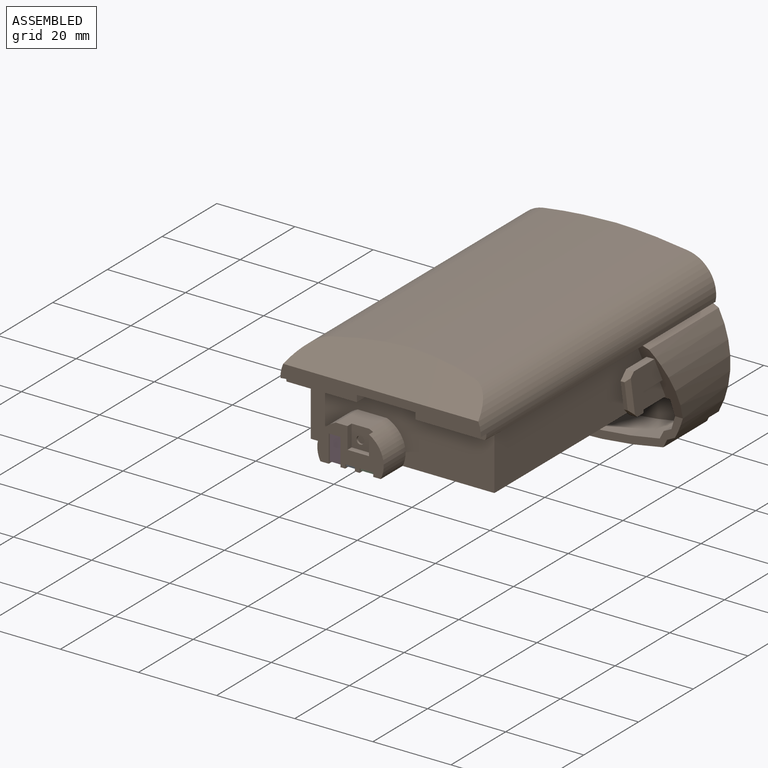
[diagram: assembled view]
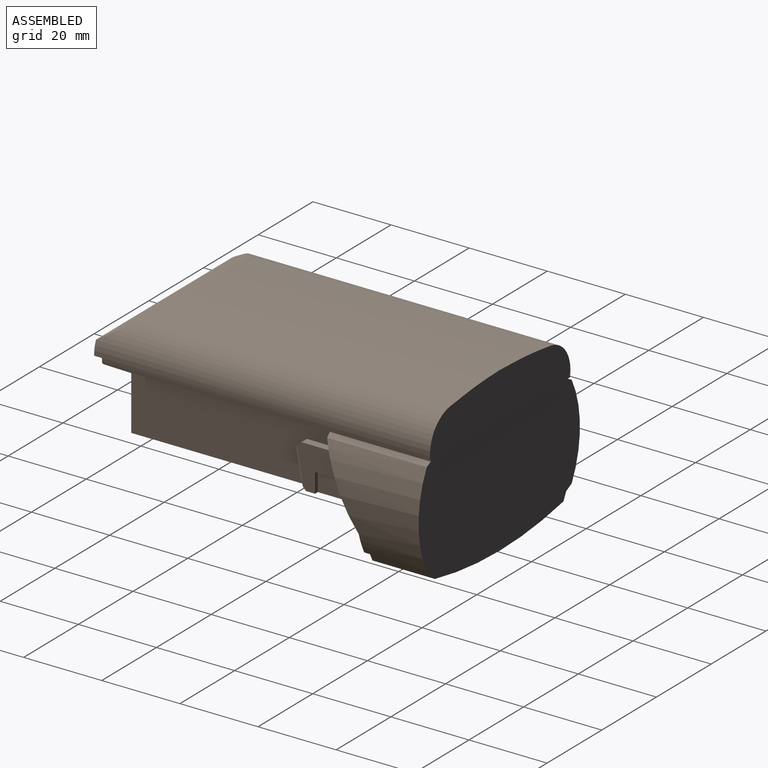
[diagram: assembled view, second angle]
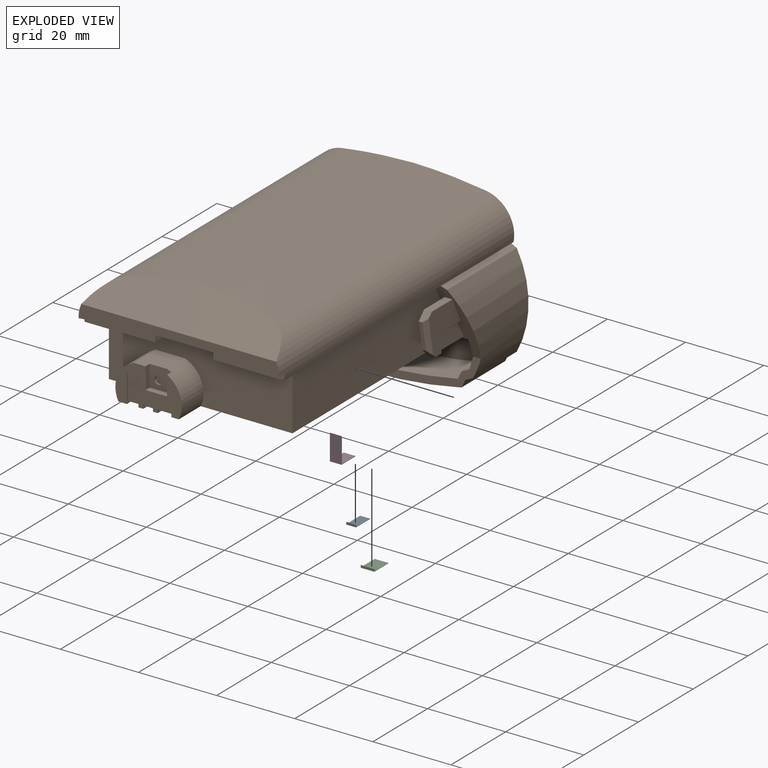
[diagram: exploded view]
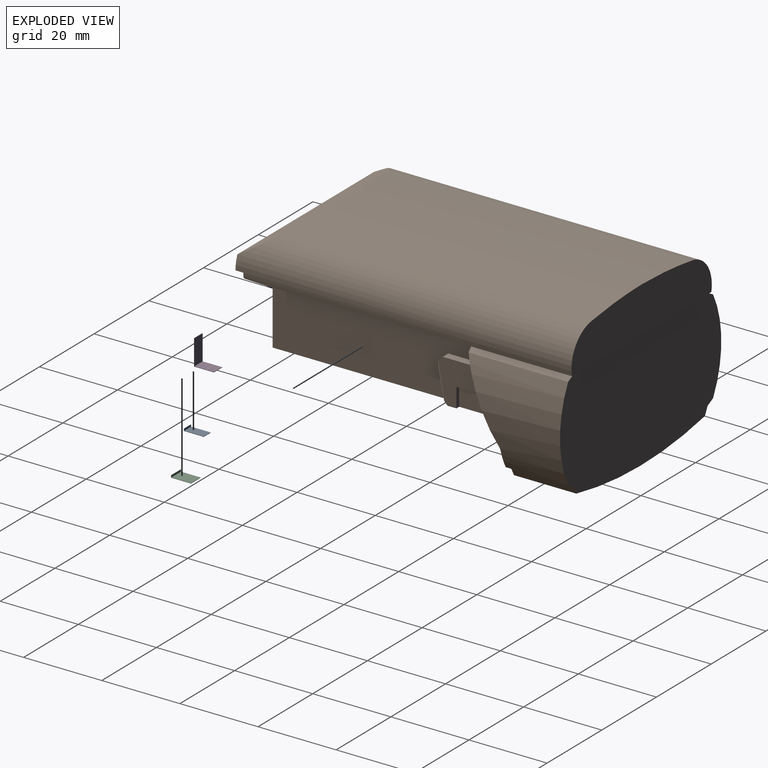
[diagram: exploded view, second angle]
ASSEMBLY  parts=4 mates=3
PART A: 10 faces, bbox 2.5x5.1x0.6 mm
  f0: bspline ~5.1x0.1mm, area 0.5mm2, adj f1,f5,f7,f9
  f1: bspline ~2.5x0.1mm, area 0.3mm2, adj f0,f2,f7,f9
  f2: bspline ~5.1x0.1mm, area 0.5mm2, adj f1,f3,f7,f9
  f3: bspline ~0.6x0.1mm, area 0.1mm2, adj f2,f4,f6,f8
  f4: bspline ~2.5x0.1mm, area 0.3mm2, adj f3,f5,f6,f8
  f5: bspline ~0.6x0.1mm, area 0.1mm2, adj f0,f4,f6,f8
  f6: plane 2.5x0.6mm, normal (0,-1,0), area 1.5mm2, adj f3,f4,f5,f7
  f7: plane 5.1x2.5mm, normal (0,0,-1), area 12.8mm2, adj f0,f1,f2,f6
  f8: plane 2.5x0.5mm, normal (0,1,0), area 1.3mm2, adj f3,f4,f5,f9
  f9: plane 5x2.5mm, normal (0,0,1), area 12.5mm2, adj f0,f1,f2,f8
PART B: 100 faces, bbox 60x87x43 mm
  f0: plane 20.25x10.25mm, normal (0,-0.89,-0.45), area 76.9mm2, adj f5,f6,f8,f10,f11,f12,f19,f20
  f1: plane 26x2mm, normal (-0.45,0,0.89), area 57.6mm2, adj f2,f3,f4,f90
  f2: plane 20.25x10.25mm, normal (0,-0.89,-0.45), area 76.9mm2, adj f1,f3,f5,f7,f9,f10,f13,f14
  f3: cylinder r=25.5mm len=25.5mm, axis (0,-1,0), area 492.8mm2, adj f1,f2,f4,f5,f25
  f4: plane 59x30.5mm, normal (0,1,0), area 1645.7mm2, adj f1,f3,f6,f8,f25,f26,f27,f28
  f5: plane 57.04x10.5mm, normal (0,-1,0), area 123.5mm2, adj f0,f2,f3,f8,f25,f26,f27,f28
  f6: plane 26x2mm, normal (0.45,0,0.89), area 57.6mm2, adj f0,f4,f8,f90
  f7: plane 10x0.02mm, normal (0,0,-1), area 0.2mm2, adj f2,f9,f36,f37
  f8: cylinder r=25.5mm len=25.5mm, axis (0,-1,0), area 492.8mm2, adj f0,f4,f5,f6,f29
  f9: plane 12.5x5mm, normal (1,0,0.1), area 56.5mm2, adj f2,f7,f10,f37
  f10: plane 79.75x54mm, normal (0,0,-1), area 3534mm2, adj f0,f2,f9,f12,f37,f63,f64,f65
  f11: plane 10x0.02mm, normal (0,0,-1), area 0.2mm2, adj f0,f12,f30,f37
  f12: plane 12.5x5mm, normal (-1,0,0.1), area 56.5mm2, adj f0,f10,f11,f37
  f13: plane 15x11mm, normal (1,0,0), area 124.1mm2, adj f2,f14,f18,f38,f39,f40
  f14: plane 7.5x2mm, normal (0,0,1), area 15mm2, adj f2,f13,f15,f38
  f15: plane 11.63x11mm, normal (-1,0,0), area 74.7mm2, adj f2,f14,f16,f18,f38,f40,f41,f42
  f16: plane 7x1mm, normal (0,0,-1), area 7mm2, adj f2,f15,f17,f42
  f17: plane 9.5x5mm, normal (-1,0,0), area 41.2mm2, adj f2,f16,f18,f42
  f18: plane 11.8x2mm, normal (0,0,-1), area 14.1mm2, adj f2,f13,f15,f17,f40,f42
  f19: plane 11.8x2mm, normal (0,0,-1), area 14.1mm2, adj f0,f20,f21,f24,f43,f44
  f20: plane 15x11mm, normal (-1,0,0), area 124.2mm2, adj f0,f19,f22,f43,f45,f46
  f21: plane 9.5x5mm, normal (1,0,0), area 41.3mm2, adj f0,f19,f23,f44
  f22: plane 7.5x2mm, normal (0,0,1), area 15mm2, adj f0,f20,f24,f45
  f23: plane 7x1mm, normal (0,0,-1), area 7mm2, adj f0,f21,f24,f44
  f24: plane 11.63x11mm, normal (1,0,0), area 74.7mm2, adj f0,f19,f22,f23,f43,f44,f45,f47
  f25: plane 16x2mm, normal (-0.45,0,-0.89), area 35.8mm2, adj f3,f4,f5,f26
  f26: plane 16x2mm, normal (-0.89,0,-0.45), area 35.8mm2, adj f4,f5,f25,f27
  f27: cylinder r=111.7mm len=47mm, axis (0,-1,0), area 757.7mm2, adj f4,f5,f26,f28
  f28: plane 16x2mm, normal (0.89,0,-0.45), area 35.8mm2, adj f4,f5,f27,f29
  f29: plane 16x2mm, normal (0.45,0,-0.89), area 35.8mm2, adj f4,f5,f8,f28
  f30: plane 10x3.21mm, normal (-0.96,0,0.27), area 33.4mm2, adj f5,f11,f31,f37
  f31: plane 10x2mm, normal (-0.45,0,0.89), area 22.4mm2, adj f5,f30,f32,f37
  f32: plane 10x2mm, normal (-0.89,0,0.45), area 22.4mm2, adj f5,f31,f33,f37
  f33: cylinder r=112.77mm len=45.21mm, axis (0,-1,0), area 455.2mm2, adj f5,f32,f34,f37
  f34: plane 10x2mm, normal (0.89,0,0.45), area 22.4mm2, adj f5,f33,f35,f37
  f35: plane 10x2mm, normal (0.45,0,0.89), area 22.4mm2, adj f5,f34,f36,f37
  f36: plane 10x3.21mm, normal (0.96,0,0.27), area 33.4mm2, adj f5,f7,f35,f37
  f37: plane 54x13.5mm, normal (0,-1,0), area 645.6mm2, adj f7,f9,f10,f11,f12,f30,f31,f32
  f38: plane 2x2mm, normal (0,-0.71,0.71), area 5mm2, adj f13,f14,f15,f39,f41
  f39: plane 7x1.2mm, normal (0,-0.99,-0.17), area 7.1mm2, adj f13,f38,f40,f41
  f40: plane 2x2mm, normal (0,-0.71,-0.71), area 4.8mm2, adj f13,f15,f18,f39,f41
  f41: plane 9.09x2.42mm, normal (-0.71,-0.7,-0.12), area 11.5mm2, adj f15,f38,f39,f40
  f42: plane 5x1mm, normal (0,1,0), area 5mm2, adj f15,f16,f17,f18
  f43: plane 2x2mm, normal (0,-0.71,-0.71), area 4.8mm2, adj f19,f20,f24,f46,f47
  f44: plane 5x1mm, normal (0,1,0), area 5mm2, adj f19,f21,f23,f24
  f45: plane 2x2mm, normal (0,-0.71,0.71), area 5mm2, adj f20,f22,f24,f46,f47
  f46: plane 7x1.2mm, normal (0,-0.99,-0.17), area 7.1mm2, adj f20,f43,f45,f47
  f47: plane 9.09x2.42mm, normal (0.71,-0.7,-0.12), area 11.5mm2, adj f24,f43,f45,f46
  f48: plane 2x2mm, normal (0,-1,0), area 3.1mm2, adj f51
  f49: plane 2.5x0.5mm, normal (0,-1,0), area 1.3mm2, adj f56,f60,f67,f69
  f50: plane 3.5x0.5mm, normal (0,-1,0), area 1.8mm2, adj f55,f61,f70,f72
  f51: cylinder r=1mm len=2mm, axis (0,-1,0), area 3.1mm2, adj f48,f62
  f52: plane 5.5x1.5mm, normal (1,0,0), area 8.2mm2, adj f53,f62,f63,f75
  f53: plane 5.5x1.5mm, normal (0,0,1), area 8.2mm2, adj f52,f54,f62,f63
  f54: plane 5.03x1.5mm, normal (-1,0,0), area 7.5mm2, adj f53,f62,f63,f76
  f55: plane 3.5x0.5mm, normal (0,0,-1), area 1.8mm2, adj f50,f63,f70,f72
  f56: plane 2.5x0.5mm, normal (0,0,-1), area 1.3mm2, adj f49,f63,f67,f69
  f57: plane 3x0.5mm, normal (0,0,-1), area 1.5mm2, adj f58,f63,f64,f66
  f58: plane 6.5x3mm, normal (0,-1,0), area 19.5mm2, adj f57,f59,f64,f66
  f59: plane 5x3mm, normal (0,0,-1), area 15mm2, adj f58,f64,f65,f66
  f60: plane 5x2.5mm, normal (0,0,-1), area 12.5mm2, adj f49,f67,f68,f69
  f61: plane 5x3.5mm, normal (0,0,-1), area 17.5mm2, adj f50,f70,f71,f72
  f62: plane 5.5x5.5mm, normal (0,-1,0), area 26.9mm2, adj f51,f52,f53,f54,f75,f76
  f63: plane 17x10mm, normal (0,-1,0), area 93.3mm2, adj f10,f52,f53,f54,f55,f56,f57,f64
  f64: plane 7x5.5mm, normal (1,0,0), area 6mm2, adj f10,f57,f58,f59,f63,f65
  f65: plane 3x0.5mm, normal (0,-1,0), area 1.5mm2, adj f10,f59,f64,f66
  f66: plane 7x5.5mm, normal (-1,0,0), area 6mm2, adj f10,f57,f58,f59,f63,f65
  f67: plane 5.5x1mm, normal (1,0,0), area 3mm2, adj f10,f49,f56,f60,f63,f68
  f68: plane 2.5x0.5mm, normal (0,-1,0), area 1.2mm2, adj f10,f60,f67,f69
  f69: plane 5.5x1mm, normal (-1,0,0), area 3mm2, adj f10,f49,f56,f60,f63,f68
  f70: plane 5.5x1mm, normal (1,0,0), area 3mm2, adj f10,f50,f55,f61,f63,f71
  f71: plane 3.5x0.5mm, normal (0,-1,0), area 1.7mm2, adj f10,f61,f70,f72
  f72: plane 5.5x1mm, normal (-1,0,0), area 3mm2, adj f10,f50,f55,f61,f63,f71
  f73: cylinder r=7mm len=8mm, axis (0,1,0), area 53mm2, adj f10,f63,f74,f83
  f74: cylinder r=7.64mm len=8mm, axis (0,1,0), area 44mm2, adj f63,f73,f75,f83
  f75: plane 8x7.51mm, normal (0,0,1), area 53.3mm2, adj f52,f62,f63,f74,f76,f83
  f76: cylinder r=7.64mm len=8mm, axis (0,1,0), area 42.3mm2, adj f54,f62,f63,f75,f77,f83
  f77: cylinder r=7mm len=8mm, axis (0,1,0), area 53mm2, adj f10,f63,f76,f83
  f78: plane 15x2mm, normal (0,-1,0), area 30mm2, adj f79,f84,f85,f86
  f79: plane 15x4mm, normal (0,0,1), area 60mm2, adj f78,f80,f84,f86
  f80: plane 15x1mm, normal (0,-1,0), area 15mm2, adj f79,f84,f86,f90
  f81: plane 59.25x15mm, normal (1,0,0), area 832.5mm2, adj f0,f10,f83,f90
  f82: plane 59.25x15mm, normal (-1,0,0), area 832.5mm2, adj f2,f10,f83,f90
  f83: plane 47x15mm, normal (0,-1,0), area 554.6mm2, adj f10,f73,f74,f75,f76,f77,f81,f82
  f84: plane 7x3mm, normal (-1,0,0), area 17mm2, adj f78,f79,f80,f85,f90,f91,f92
  f85: plane 15x7mm, normal (0,0,-1), area 105mm2, adj f78,f84,f86,f92,f93
  f86: plane 7x3mm, normal (1,0,0), area 17mm2, adj f78,f79,f80,f85,f90,f93,f94
  f87: cylinder r=134.11mm len=77.88mm, axis (0,1,0), area 1423.9mm2, adj f88,f89,f95,f96
  f88: plane 51.34x11.51mm, normal (0,1,0), area 519.8mm2, adj f87,f89,f90,f95,f97
  f89: cylinder r=134.11mm len=77.88mm, axis (0,1,0), area 1423.9mm2, adj f87,f88,f96,f97
  f90: plane 84x51mm, normal (0,0,-1), area 473.9mm2, adj f0,f1,f2,f4,f6,f80,f81,f82
  f91: plane 18.17x3mm, normal (0,-1,0), area 42.3mm2, adj f84,f90,f97,f98
  f92: plane 7.5x0.12mm, normal (0,1,0), area 0.3mm2, adj f84,f85,f98
  f93: plane 7.5x0.12mm, normal (0,1,0), area 0.3mm2, adj f85,f86,f98
  f94: plane 18.17x2.88mm, normal (0,-1,0), area 42.3mm2, adj f86,f90,f95,f98
  f95: cylinder r=8.43mm len=86mm, axis (0,1,0), area 1128.4mm2, adj f87,f88,f90,f94,f96,f98,f99
  f96: plane 51x11.61mm, normal (0,-0.52,0.85), area 505.3mm2, adj f87,f89,f95,f97,f99
  f97: cylinder r=8.43mm len=86mm, axis (0,1,0), area 1128.4mm2, adj f88,f89,f90,f91,f96,f98,f99
  f98: cylinder r=228.17mm len=51.33mm, axis (0,-1,0), area 102.9mm2, adj f91,f92,f93,f94,f95,f97,f99
  f99: plane 51.36x3.45mm, normal (0,-1,0), area 125.9mm2, adj f95,f96,f97,f98
PART C: 10 faces, bbox 3.5x5.1x0.6 mm
  f0: bspline ~5.1x0.1mm, area 0.5mm2, adj f1,f5,f7,f9
  f1: bspline ~3.5x0.1mm, area 0.4mm2, adj f0,f2,f7,f9
  f2: bspline ~5.1x0.1mm, area 0.5mm2, adj f1,f3,f7,f9
  f3: bspline ~0.6x0.1mm, area 0.1mm2, adj f2,f4,f6,f8
  f4: bspline ~3.5x0.1mm, area 0.4mm2, adj f3,f5,f6,f8
  f5: bspline ~0.6x0.1mm, area 0.1mm2, adj f0,f4,f6,f8
  f6: plane 3.5x0.6mm, normal (0,-1,0), area 2.1mm2, adj f3,f4,f5,f7
  f7: plane 5.1x3.5mm, normal (0,0,-1), area 17.9mm2, adj f0,f1,f2,f6
  f8: plane 3.5x0.5mm, normal (0,1,0), area 1.8mm2, adj f3,f4,f5,f9
  f9: plane 5x3.5mm, normal (0,0,1), area 17.5mm2, adj f0,f1,f2,f8
PART D: 10 faces, bbox 3x5.1x6.6 mm
  f0: bspline ~6.6x0.1mm, area 0.7mm2, adj f1,f5,f7,f9
  f1: bspline ~3x0.1mm, area 0.3mm2, adj f0,f2,f7,f9
  f2: bspline ~6.6x0.1mm, area 0.7mm2, adj f1,f3,f7,f9
  f3: bspline ~5.1x0.1mm, area 0.5mm2, adj f2,f4,f6,f8
  f4: bspline ~3x0.1mm, area 0.3mm2, adj f3,f5,f6,f8
  f5: bspline ~5.1x0.1mm, area 0.5mm2, adj f0,f4,f6,f8
  f6: plane 5.1x3mm, normal (0,0,-1), area 15.3mm2, adj f3,f4,f5,f7
  f7: plane 6.6x3mm, normal (0,-1,0), area 19.8mm2, adj f0,f1,f2,f6
  f8: plane 5x3mm, normal (0,0,1), area 15mm2, adj f3,f4,f5,f9
  f9: plane 6.5x3mm, normal (0,1,0), area 19.5mm2, adj f0,f1,f2,f8
PLACE A at identity
PLACE B at identity fixed
PLACE C at identity
PLACE D at identity
MATE fastened C.f9 <-> B.f61  axis (0,0,1) through (-3.65,-57,0.5)mm
MATE fastened D.f9 <-> B.f58  axis (0,1,0) through (-11.8,-59.5,3.75)mm
MATE fastened A.f9 <-> B.f60  axis (0,0,1) through (-7.85,-57,0.5)mm
